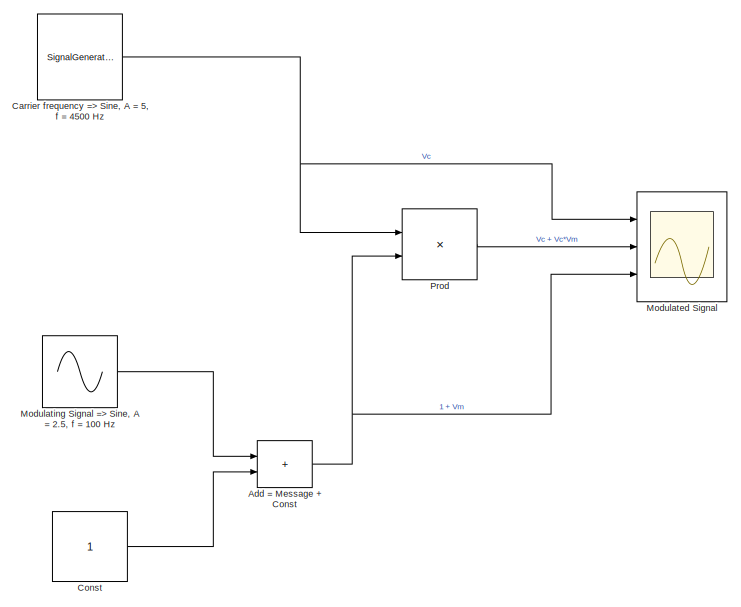
[diagram: root canvas - part 1/3, top left region]
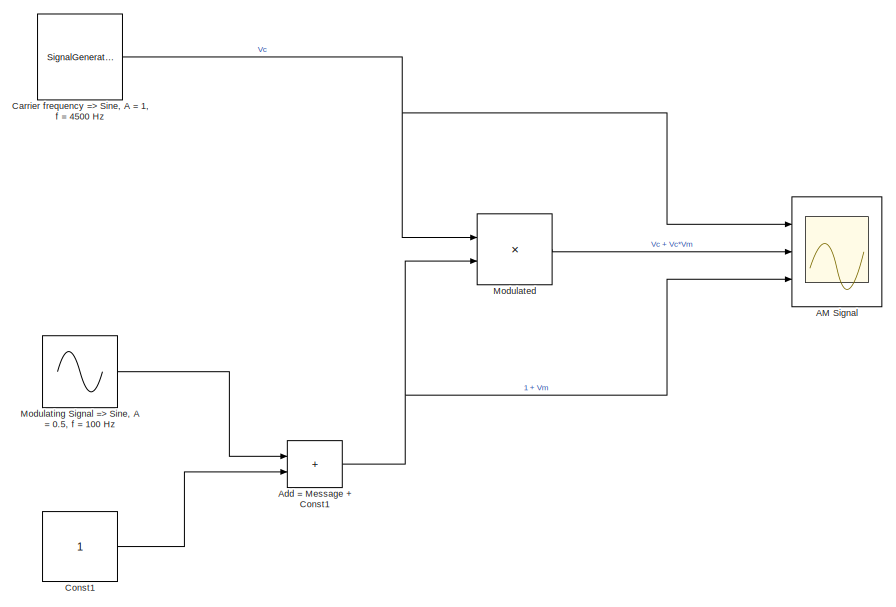
[diagram: root canvas - part 2/3, top right region]
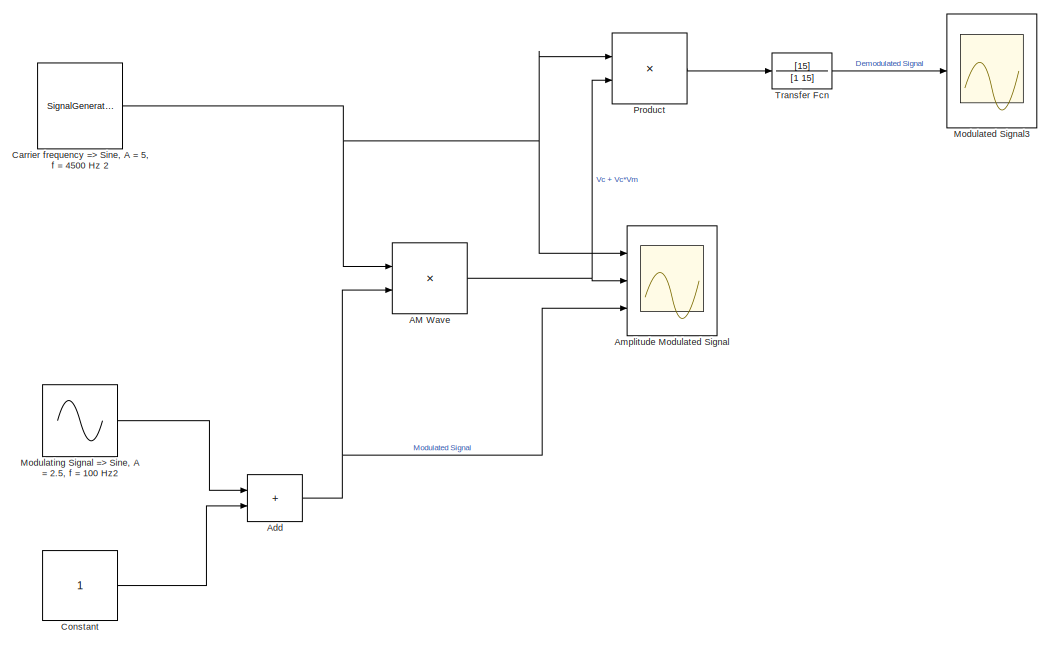
[diagram: root canvas - part 3/3, bottom left region]
MODEL slx_b8cf69899de9
KIND model
CONFIG AbsTol = auto
CONFIG EnableMultiTasking = off
CONFIG FixedStep = auto
CONFIG MaxStep = auto
CONFIG MinStep = auto
CONFIG RelTol = 1e-3
CONFIG SampleTimeConstraint = Unconstrained
CONFIG SolverName = VariableStepAuto
CONFIG StartTime = 0.0
CONFIG StopTime = 10.0
BLOCK [Scope] AM Signal
  Floating = off
  NumInputPorts = 3
  Ports = [3]
  ScopeSpecificationString = Simulink.scopes.TimeScopeBlockCfg('CurrentConfiguration', extmgr.ConfigurationSet(extmgr.Configuration('Core','General UI',true),extmgr.Configuration('Core','Source UI',true),extmgr.Configuration('Sources','WiredSimulink',true,'DataLoggingVariableName','ScopeData1'),extmgr.Configuration('Visuals','Time Domain',true,'SerializedDisplays',{struct('MinYLimReal','-1.09959','MaxYLimReal','1.76609','YLab...<+1830ch>
BLOCK [Product] AM Wave
  Ports = [2, 1]
BLOCK [Sum] Add
  IconShape = rectangular
  Ports = [2, 1]
BLOCK [Sum] Add = Message + Const
  IconShape = rectangular
  Ports = [2, 1]
BLOCK [Sum] Add = Message + Const1
  IconShape = rectangular
  Ports = [2, 1]
BLOCK [Scope] Amplitude Modulated Signal
  Floating = off
  NumInputPorts = 3
  Ports = [3]
  ScopeSpecificationString = Simulink.scopes.TimeScopeBlockCfg('CurrentConfiguration', extmgr.ConfigurationSet(extmgr.Configuration('Core','General UI',true),extmgr.Configuration('Core','Source UI',true),extmgr.Configuration('Sources','WiredSimulink',true,'DataLoggingVariableName','ScopeData2'),extmgr.Configuration('Visuals','Time Domain',true,'SerializedDisplays',{struct('MinYLimReal','-2.01649','MaxYLimReal','3.99108','YLab...<+1555ch>
BLOCK [SignalGenerator] Carrier frequency => Sine, A = 1, f = 4500 Hz  
  Frequency = 2*pi*4500
  Ports = [0, 1]
  Units = rad/sec
BLOCK [SignalGenerator] Carrier frequency => Sine, A = 5, f = 4500 Hz  
  Amplitude = 5
  Frequency = 2*pi*4500
  Ports = [0, 1]
  Units = rad/sec
BLOCK [SignalGenerator] Carrier frequency => Sine, A = 5, f = 4500 Hz  2
  Amplitude = 5
  Frequency = 2*pi*4500
  Ports = [0, 1]
  Units = rad/sec
BLOCK [Constant] Const
BLOCK [Constant] Const1
BLOCK [Constant] Constant
BLOCK [Product] Modulated 
  Ports = [2, 1]
BLOCK [Scope] Modulated Signal
  Floating = off
  NumInputPorts = 3
  Ports = [3]
  ScopeSpecificationString = Simulink.scopes.TimeScopeBlockCfg('CurrentConfiguration', extmgr.ConfigurationSet(extmgr.Configuration('Core','General UI',true),extmgr.Configuration('Core','Source UI',true),extmgr.Configuration('Sources','WiredSimulink',true,'DataLoggingVariableName','ScopeData2'),extmgr.Configuration('Visuals','Time Domain',true,'SerializedDisplays',{struct('MinYLimReal','-13.04061','MaxYLimReal','20.79752','YL...<+1813ch>
BLOCK [Scope] Modulated Signal3
  Floating = off
  NumInputPorts = 1
  Ports = [1]
  ScopeSpecificationString = Simulink.scopes.TimeScopeBlockCfg('CurrentConfiguration', extmgr.ConfigurationSet(extmgr.Configuration('Core','General UI',true),extmgr.Configuration('Core','Source UI',true),extmgr.Configuration('Sources','WiredSimulink',true,'DataLoggingVariableName','ScopeData3'),extmgr.Configuration('Visuals','Time Domain',true,'SerializedDisplays',{struct('MinYLimReal','11.56538','MaxYLimReal','13.42426','YLa...<+1497ch>
BLOCK [Sin] Modulating Signal => Sine, A = 0.5, f = 100 Hz
  Amplitude = 0.5
  Frequency = 2*pi*100
  Ports = [0, 1]
  SampleTime = 0
BLOCK [Sin] Modulating Signal => Sine, A = 2.5, f = 100 Hz
  Amplitude = 2.5
  Frequency = 2*pi*100
  Ports = [0, 1]
  SampleTime = 0
BLOCK [Sin] Modulating Signal => Sine, A = 2.5, f = 100 Hz2
  Amplitude = 2.5
  Frequency = 2*pi*100
  Ports = [0, 1]
  SampleTime = 0
BLOCK [Product] Prod
  Ports = [2, 1]
BLOCK [Product] Product
  Ports = [2, 1]
BLOCK [TransferFcn] Transfer Fcn
  Denominator = [1 15]
  Numerator = [15]
NET AM Wave:1 -> Amplitude Modulated Signal:2, Product:2
NET Add = Message + Const1:1 -> AM Signal:3, Modulated :2
NET Add = Message + Const:1 -> Modulated Signal:3, Prod:2
NET Add:1 -> AM Wave:2, Amplitude Modulated Signal:3
NET Carrier frequency => Sine, A = 1, f = 4500 Hz  :1 -> AM Signal:1, Modulated :1
NET Carrier frequency => Sine, A = 5, f = 4500 Hz  2:1 -> AM Wave:1, Amplitude Modulated Signal:1, Product:1
NET Carrier frequency => Sine, A = 5, f = 4500 Hz  :1 -> Modulated Signal:1, Prod:1
LINE Const1:1 -> Add = Message + Const1:2
LINE Const:1 -> Add = Message + Const:2
LINE Constant:1 -> Add:2
LINE Modulated :1 -> AM Signal:2
LINE Modulating Signal => Sine, A = 0.5, f = 100 Hz:1 -> Add = Message + Const1:1
LINE Modulating Signal => Sine, A = 2.5, f = 100 Hz2:1 -> Add:1
LINE Modulating Signal => Sine, A = 2.5, f = 100 Hz:1 -> Add = Message + Const:1
LINE Prod:1 -> Modulated Signal:2
LINE Product:1 -> Transfer Fcn:1
LINE Transfer Fcn:1 -> Modulated Signal3:1
note: NET lines group one-source signal fan-out (src -> all destinations, sorted); 1:1 wires keep LINE
